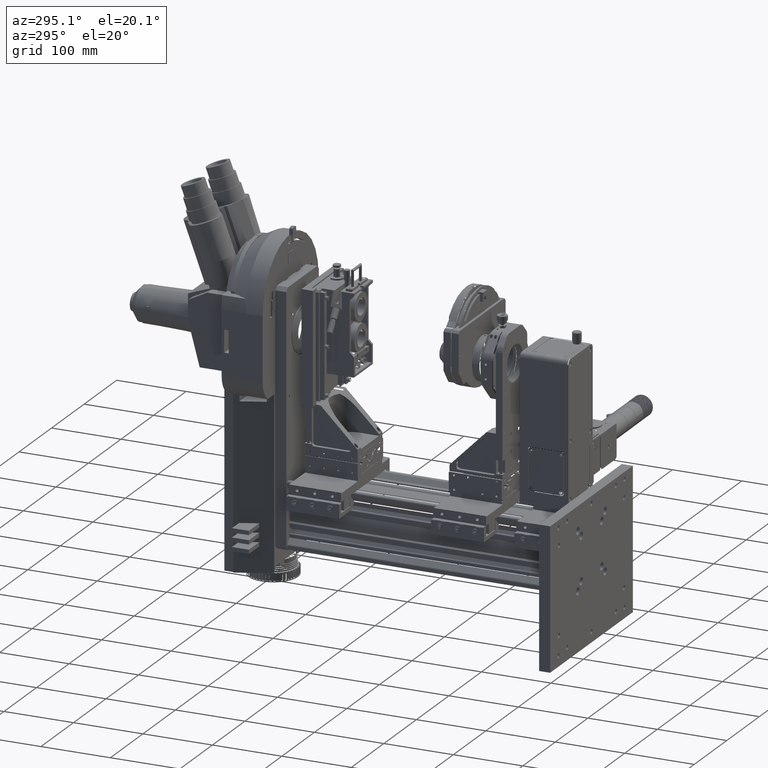
[diagram: clean part render]
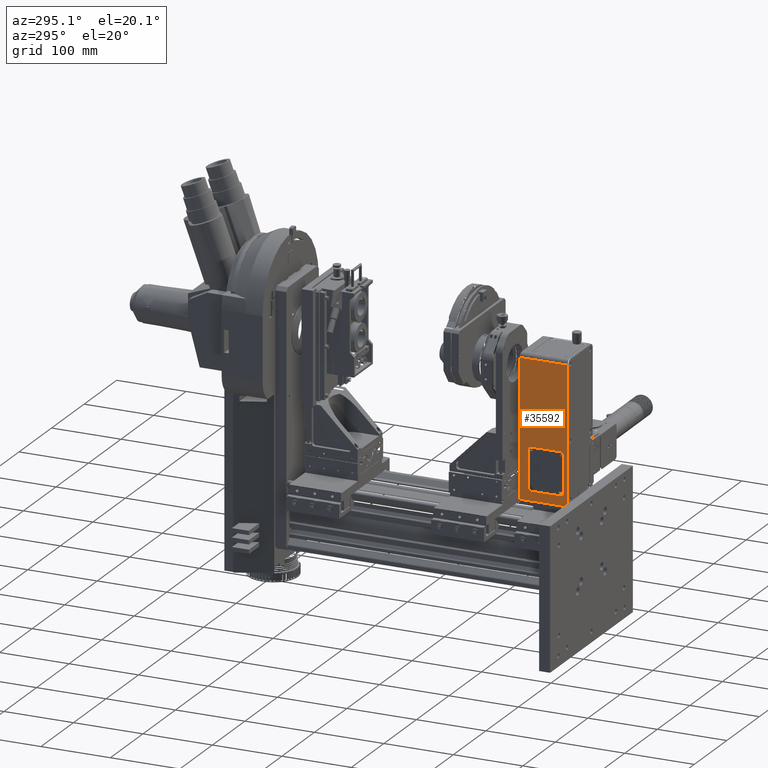
[diagram: same view with one face highlighted and labeled with its STEP entity id]
A machine part, auxiliary view. The second image highlights one B-rep face of the part: STEP entity #35592.
In plain terms, the highlighted planar face has unit normal (1, 0, 0).
Its self-contained STEP definition (entity closure, byte-faithful):
#1647 = DIRECTION ( 'NONE',  ( -1.000000000000000000, -4.462384213207438000E-015, -1.288248543680449400E-016 ) ) ;
#4669 = AXIS2_PLACEMENT_3D ( 'NONE', #71897, #1647, #83729 ) ;
#5141 = CIRCLE ( 'NONE', #4669, 3.937000000000023800 ) ;
#6029 = ORIENTED_EDGE ( 'NONE', *, *, #85022, .F. ) ;
#7120 = CARTESIAN_POINT ( 'NONE',  ( -11.64598529865470900, -313.9292781206986000, 297.2076022212424400 ) ) ;
#7795 = ORIENTED_EDGE ( 'NONE', *, *, #51594, .T. ) ;
#10418 = FACE_OUTER_BOUND ( 'NONE', #84595, .T. ) ;
#10647 = CARTESIAN_POINT ( 'NONE',  ( -11.64598529865441800, -377.1752781206985800, 314.8380352799304700 ) ) ;
#11148 = AXIS2_PLACEMENT_3D ( 'NONE', #36565, #118985, #48428 ) ;
#14082 = FACE_BOUND ( 'NONE', #133156, .T. ) ;
#14665 = VERTEX_POINT ( 'NONE', #10647 ) ;
#15744 = DIRECTION ( 'NONE',  ( -5.211435889046063600E-017, 1.804112415015878900E-016, 1.000000000000000000 ) ) ;
#15957 = LINE ( 'NONE', #17356, #47188 ) ;
#17356 = CARTESIAN_POINT ( 'NONE',  ( -11.64598529865462600, -329.8042781206985400, 310.9010352799305100 ) ) ;
#19626 = DIRECTION ( 'NONE',  ( 5.211435889046063600E-017, -1.804112415015878900E-016, -1.000000000000000000 ) ) ;
#21440 = ORIENTED_EDGE ( 'NONE', *, *, #148354, .F. ) ;
#24233 = LINE ( 'NONE', #136480, #145855 ) ;
#24784 = VECTOR ( 'NONE', #15744, 1000.000000000000000 ) ;
#25950 = VECTOR ( 'NONE', #75074, 1000.000000000000000 ) ;
#28771 = EDGE_CURVE ( 'NONE', #56550, #143367, #144318, .T. ) ;
#29569 = CARTESIAN_POINT ( 'NONE',  ( -11.64598529865462600, -329.8042781206985400, 310.9010352799305100 ) ) ;
#32517 = VERTEX_POINT ( 'NONE', #136335 ) ;
#34067 = VERTEX_POINT ( 'NONE', #108015 ) ;
#35295 = CARTESIAN_POINT ( 'NONE',  ( -11.64598529865464000, -329.8042781206985400, 372.1150352799305100 ) ) ;
#35592 = ADVANCED_FACE ( 'NONE', ( #14082, #10418 ), #59264, .F. ) ;
#36565 = CARTESIAN_POINT ( 'NONE',  ( -11.64598529865470900, -313.4212781206985600, 500.4076022212424800 ) ) ;
#38391 = VERTEX_POINT ( 'NONE', #94111 ) ;
#40835 = VECTOR ( 'NONE', #76644, 1000.000000000000000 ) ;
#42489 = VERTEX_POINT ( 'NONE', #29569 ) ;
#42509 = LINE ( 'NONE', #135380, #101462 ) ;
#44497 = CARTESIAN_POINT ( 'NONE',  ( -11.64598529865444700, -373.2382781206986200, 372.1150352799305100 ) ) ;
#47111 = DIRECTION ( 'NONE',  ( -4.462639283312720800E-015, 1.000000000000000000, -2.359223927328457600E-016 ) ) ;
#47188 = VECTOR ( 'NONE', #99606, 1000.000000000000000 ) ;
#48428 = DIRECTION ( 'NONE',  ( 5.211435889046064300E-017, -1.804112415015878900E-016, -1.000000000000000000 ) ) ;
#50345 = ORIENTED_EDGE ( 'NONE', *, *, #84812, .F. ) ;
#51390 = CARTESIAN_POINT ( 'NONE',  ( -11.64598529865470900, -313.4212781206985600, 494.0576022212424600 ) ) ;
#51594 = EDGE_CURVE ( 'NONE', #34067, #149727, #118789, .T. ) ;
#54407 = ORIENTED_EDGE ( 'NONE', *, *, #115206, .T. ) ;
#55101 = EDGE_CURVE ( 'NONE', #143367, #140182, #146886, .T. ) ;
#56364 = CARTESIAN_POINT ( 'NONE',  ( -11.64598529865444700, -373.2382781206986200, 314.8380352799304700 ) ) ;
#56550 = VERTEX_POINT ( 'NONE', #44497 ) ;
#57247 = LINE ( 'NONE', #51390, #25950 ) ;
#57542 = CARTESIAN_POINT ( 'NONE',  ( -11.64598529865441800, -377.1752781206986400, 314.8380352799304700 ) ) ;
#59264 = PLANE ( 'NONE',  #11148 ) ;
#61145 = CARTESIAN_POINT ( 'NONE',  ( -11.64598529865444700, -373.2382781206986200, 368.1780352799305500 ) ) ;
#63924 = CARTESIAN_POINT ( 'NONE',  ( -11.64598529865464000, -329.8042781206985400, 368.1780352799305500 ) ) ;
#64742 = CARTESIAN_POINT ( 'NONE',  ( -11.64598529865470900, -313.4212781206986200, 297.2076022212424400 ) ) ;
#65947 = ORIENTED_EDGE ( 'NONE', *, *, #132636, .T. ) ;
#66013 = AXIS2_PLACEMENT_3D ( 'NONE', #61145, #143552, #72917 ) ;
#66564 = CIRCLE ( 'NONE', #84744, 3.937000000000023800 ) ;
#67264 = CARTESIAN_POINT ( 'NONE',  ( -11.64598529865465400, -325.8672781206985900, 368.1780352799305500 ) ) ;
#68195 = DIRECTION ( 'NONE',  ( 0.0000000000000000000, 0.0000000000000000000, -1.000000000000000000 ) ) ;
#69342 = DIRECTION ( 'NONE',  ( -5.211435889046085200E-017, 2.291942413884496800E-016, 1.000000000000000000 ) ) ;
#71897 = CARTESIAN_POINT ( 'NONE',  ( -11.64598529865462600, -329.8042781206985400, 314.8380352799304700 ) ) ;
#72383 = AXIS2_PLACEMENT_3D ( 'NONE', #63924, #146380, #75817 ) ;
#72917 = DIRECTION ( 'NONE',  ( 0.0000000000000000000, 0.0000000000000000000, -1.000000000000000000 ) ) ;
#73991 = EDGE_CURVE ( 'NONE', #32517, #128740, #24233, .T. ) ;
#75074 = DIRECTION ( 'NONE',  ( -4.462639283312720800E-015, 1.000000000000000000, -2.359223927328457600E-016 ) ) ;
#75817 = DIRECTION ( 'NONE',  ( 0.0000000000000000000, 0.0000000000000000000, -1.000000000000000000 ) ) ;
#76644 = DIRECTION ( 'NONE',  ( 4.462639283312720800E-015, -1.000000000000000000, 2.359223927328457600E-016 ) ) ;
#79196 = CIRCLE ( 'NONE', #66013, 3.937000000000023800 ) ;
#83729 = DIRECTION ( 'NONE',  ( 0.0000000000000000000, 0.0000000000000000000, -1.000000000000000000 ) ) ;
#84595 = EDGE_LOOP ( 'NONE', ( #65947, #7795, #54407, #114895 ) ) ;
#84744 = AXIS2_PLACEMENT_3D ( 'NONE', #56364, #138790, #68195 ) ;
#84812 = EDGE_CURVE ( 'NONE', #124400, #42489, #5141, .T. ) ;
#85022 = EDGE_CURVE ( 'NONE', #42489, #38391, #15957, .T. ) ;
#86174 = CARTESIAN_POINT ( 'NONE',  ( -11.64598529865440400, -382.7632781206985400, 494.0576022212424600 ) ) ;
#94111 = CARTESIAN_POINT ( 'NONE',  ( -11.64598529865444700, -373.2382781206986200, 310.9010352799305100 ) ) ;
#96033 = LINE ( 'NONE', #64742, #40835 ) ;
#99606 = DIRECTION ( 'NONE',  ( 4.462639283312720800E-015, -1.000000000000000000, 2.359223927328457600E-016 ) ) ;
#100416 = ORIENTED_EDGE ( 'NONE', *, *, #147980, .F. ) ;
#100869 = CARTESIAN_POINT ( 'NONE',  ( -11.64598529865440400, -382.7632781206985400, 494.0576022212424600 ) ) ;
#101462 = VECTOR ( 'NONE', #146800, 1000.000000000000000 ) ;
#103514 = LINE ( 'NONE', #57542, #131142 ) ;
#105796 = CARTESIAN_POINT ( 'NONE',  ( -11.64598529865464000, -329.8042781206985400, 372.1150352799305100 ) ) ;
#106518 = EDGE_CURVE ( 'NONE', #14665, #115571, #103514, .T. ) ;
#108015 = CARTESIAN_POINT ( 'NONE',  ( -11.64598529865440400, -382.7632781206985400, 297.2076022212424400 ) ) ;
#112992 = VECTOR ( 'NONE', #47111, 1000.000000000000000 ) ;
#114895 = ORIENTED_EDGE ( 'NONE', *, *, #73991, .T. ) ;
#115206 = EDGE_CURVE ( 'NONE', #149727, #32517, #57247, .T. ) ;
#115571 = VERTEX_POINT ( 'NONE', #144865 ) ;
#116663 = ORIENTED_EDGE ( 'NONE', *, *, #55101, .F. ) ;
#118789 = LINE ( 'NONE', #86174, #24784 ) ;
#118887 = ORIENTED_EDGE ( 'NONE', *, *, #106518, .F. ) ;
#118985 = DIRECTION ( 'NONE',  ( 1.000000000000000000, 4.462384213207438000E-015, 5.211435889045983500E-017 ) ) ;
#123566 = CARTESIAN_POINT ( 'NONE',  ( -11.64598529865465400, -325.8672781206985900, 314.8380352799304700 ) ) ;
#124400 = VERTEX_POINT ( 'NONE', #123566 ) ;
#126009 = ORIENTED_EDGE ( 'NONE', *, *, #133132, .F. ) ;
#128740 = VERTEX_POINT ( 'NONE', #7120 ) ;
#131142 = VECTOR ( 'NONE', #69342, 1000.000000000000000 ) ;
#132636 = EDGE_CURVE ( 'NONE', #128740, #34067, #96033, .T. ) ;
#133132 = EDGE_CURVE ( 'NONE', #38391, #14665, #66564, .T. ) ;
#133156 = EDGE_LOOP ( 'NONE', ( #118887, #126009, #6029, #50345, #100416, #116663, #143493, #21440 ) ) ;
#135380 = CARTESIAN_POINT ( 'NONE',  ( -11.64598529865465400, -325.8672781206985900, 314.8380352799304700 ) ) ;
#136335 = CARTESIAN_POINT ( 'NONE',  ( -11.64598529865470900, -313.9292781206986000, 494.0576022212424600 ) ) ;
#136480 = CARTESIAN_POINT ( 'NONE',  ( -11.64598529865470900, -313.9292781206986000, 500.4076022212424800 ) ) ;
#138790 = DIRECTION ( 'NONE',  ( -1.000000000000000000, -4.462384213207438000E-015, -1.288248543680449400E-016 ) ) ;
#140182 = VERTEX_POINT ( 'NONE', #67264 ) ;
#143367 = VERTEX_POINT ( 'NONE', #105796 ) ;
#143493 = ORIENTED_EDGE ( 'NONE', *, *, #28771, .F. ) ;
#143552 = DIRECTION ( 'NONE',  ( -1.000000000000000000, -4.462384213207438000E-015, -1.288248543680449400E-016 ) ) ;
#144318 = LINE ( 'NONE', #35295, #112992 ) ;
#144865 = CARTESIAN_POINT ( 'NONE',  ( -11.64598529865441800, -377.1752781206985800, 368.1780352799305500 ) ) ;
#145855 = VECTOR ( 'NONE', #19626, 1000.000000000000000 ) ;
#146380 = DIRECTION ( 'NONE',  ( -1.000000000000000000, -4.462384213207438000E-015, -1.288248543680449400E-016 ) ) ;
#146800 = DIRECTION ( 'NONE',  ( 5.211435889046063600E-017, -1.804112415015878900E-016, -1.000000000000000000 ) ) ;
#146886 = CIRCLE ( 'NONE', #72383, 3.937000000000023800 ) ;
#147980 = EDGE_CURVE ( 'NONE', #140182, #124400, #42509, .T. ) ;
#148354 = EDGE_CURVE ( 'NONE', #115571, #56550, #79196, .T. ) ;
#149727 = VERTEX_POINT ( 'NONE', #100869 ) ;